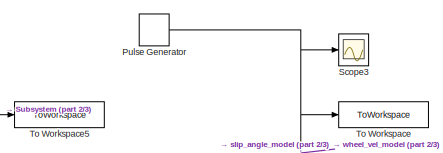
[diagram: root canvas - part 1/3, top right region]
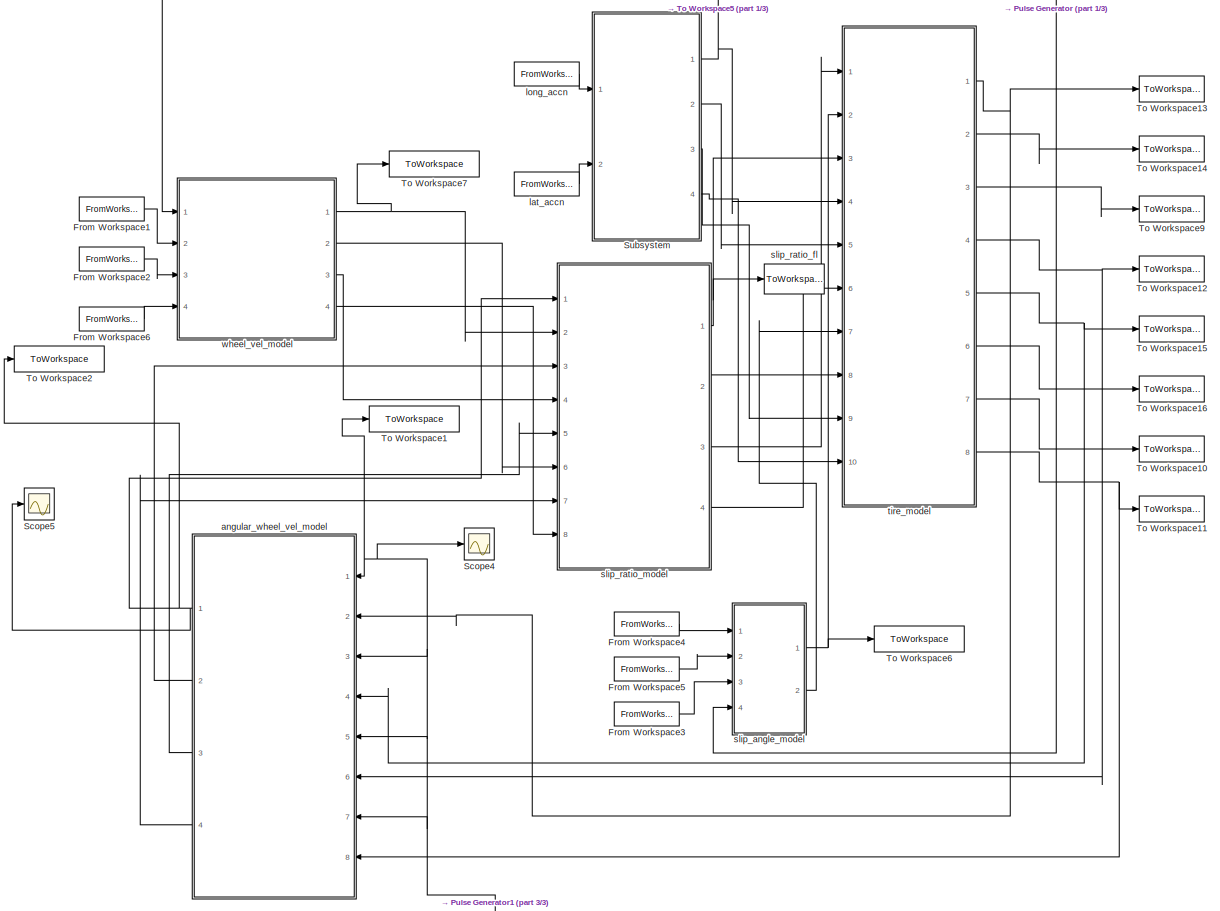
[diagram: root canvas - part 2/3, full width, middle band]
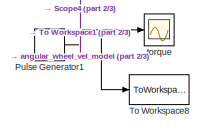
[diagram: root canvas - part 3/3, bottom center region]
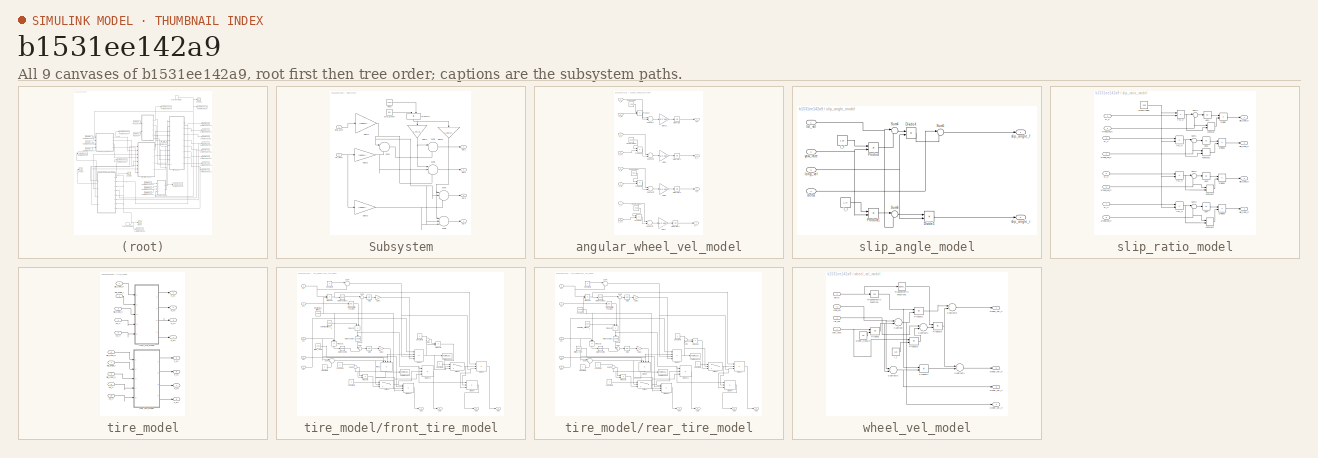
[diagram: thumbnail index - all 9 canvases of the model, root first then tree order]
MODEL slx_b1531ee142a9
KIND model
CONFIG AbsTol = auto
CONFIG FixedStep = auto
CONFIG MaxStep = auto
CONFIG MinStep = auto
CONFIG RelTol = 1e-3
CONFIG SampleTimeConstraint = Unconstrained
CONFIG Solver = ode3
CONFIG SolverMode = Auto
CONFIG SolverName = ode3
CONFIG StartTime = 0.0
CONFIG StopTime = 0
BLOCK [Scope]            torque
  Floating = off
  LimitDataPoints = off
  NumInputPorts = 1
  Ports = [1]
  SaveName = ScopeData10
  ZoomMode = xonly
BLOCK [FromWorkspace] From Workspace1
  SampleTime = 1
  VariableName = long_vel
  ZeroCross = on
BLOCK [FromWorkspace] From Workspace2
  SampleTime = 1
  VariableName = lat_vel
  ZeroCross = on
BLOCK [FromWorkspace] From Workspace3
  SampleTime = 1
  VariableName = long_vel
  ZeroCross = on
BLOCK [FromWorkspace] From Workspace4
  SampleTime = 1
  VariableName = lat_vel
  ZeroCross = on
BLOCK [FromWorkspace] From Workspace5
  SampleTime = 1
  VariableName = yaw_rate
  ZeroCross = on
BLOCK [FromWorkspace] From Workspace6
  SampleTime = 1
  VariableName = yaw_rate
  ZeroCross = on
BLOCK [DiscretePulseGenerator] Pulse Generator
  Amplitude = 0
  Period = 8
  PhaseDelay = 3
  Ports = [0, 1]
  PulseType = Time based
  PulseWidth = 5
BLOCK [DiscretePulseGenerator] Pulse Generator1
  Amplitude = 50
  Period = 8
  PhaseDelay = 3
  Ports = [0, 1]
  PulseType = Time based
  PulseWidth = 5
BLOCK [Scope] Scope3
  Floating = off
  NumInputPorts = 1
  Ports = [1]
  SaveName = ScopeData3
BLOCK [Scope] Scope4
  Floating = off
  NumInputPorts = 1
  Ports = [1]
  SaveName = ScopeData4
BLOCK [Scope] Scope5
  Floating = off
  NumInputPorts = 1
  Ports = [1]
  SaveName = ScopeData5
BLOCK [SubSystem] Subsystem
  Ports = [2, 4]
  RequestExecContextInheritance = off
BLOCK [Gain] Subsystem/Gain12
  Gain = (1500*0.7)/(2*2.95)
  OutDataTypeStr = Inherit: Inherit via internal rule
  ParamDataTypeStr = Inherit: Inherit via internal rule
  SaturateOnIntegerOverflow = off
BLOCK [Gain] Subsystem/Gain13
  Gain = (1500*1.77*0.7)/(2.95*1.8)
  OutDataTypeStr = Inherit: Inherit via internal rule
  ParamDataTypeStr = Inherit: Inherit via internal rule
  SaturateOnIntegerOverflow = off
BLOCK [Gain] Subsystem/Gain14
  Gain = 1.77/(2*2.95)
  OutDataTypeStr = Inherit: Inherit via internal rule
  ParamDataTypeStr = Inherit: Inherit via internal rule
  SaturateOnIntegerOverflow = off
BLOCK [Gain] Subsystem/Gain15
  Gain = 1.18/(2*2.95)
  OutDataTypeStr = Inherit: Inherit via internal rule
  ParamDataTypeStr = Inherit: Inherit via internal rule
  SaturateOnIntegerOverflow = off
BLOCK [Gain] Subsystem/Gain16
  Gain = (1500*1.18*0.7)/(2.95*1.8)
  OutDataTypeStr = Inherit: Inherit via internal rule
  ParamDataTypeStr = Inherit: Inherit via internal rule
  SaturateOnIntegerOverflow = off
BLOCK [Outport] Subsystem/Out1
  IconDisplay = Port number
BLOCK [Outport] Subsystem/Out2
  IconDisplay = Port number
  Port = 2
BLOCK [Outport] Subsystem/Out3
  IconDisplay = Port number
  Port = 3
BLOCK [Outport] Subsystem/Out4
  IconDisplay = Port number
  Port = 4
BLOCK [Product] Subsystem/Product8
  InputSameDT = off
  OutDataTypeStr = Inherit: Inherit via internal rule
  Ports = [2, 1]
  RndMeth = Floor
  SaturateOnIntegerOverflow = off
BLOCK [Sum] Subsystem/Sum4
  IconShape = round
  InputSameDT = off
  Inputs = |++
  OutDataTypeStr = Inherit: Inherit via internal rule
  Ports = [2, 1]
  SaturateOnIntegerOverflow = off
BLOCK [Sum] Subsystem/Sum5
  IconShape = round
  InputSameDT = off
  Inputs = |+-
  OutDataTypeStr = Inherit: Inherit via internal rule
  Ports = [2, 1]
  SaturateOnIntegerOverflow = off
BLOCK [Sum] Subsystem/Sum6
  IconShape = round
  InputSameDT = off
  Inputs = |++-
  OutDataTypeStr = Inherit: Inherit via internal rule
  Ports = [3, 1]
  SaturateOnIntegerOverflow = off
BLOCK [Sum] Subsystem/Sum7
  IconShape = round
  InputSameDT = off
  Inputs = |++-
  OutDataTypeStr = Inherit: Inherit via internal rule
  Ports = [3, 1]
  SaturateOnIntegerOverflow = off
BLOCK [Sum] Subsystem/Sum8
  IconShape = round
  InputSameDT = off
  Inputs = |+++
  OutDataTypeStr = Inherit: Inherit via internal rule
  Ports = [3, 1]
  SaturateOnIntegerOverflow = off
BLOCK [Constant] Subsystem/accn_gravity 
  Value = 9.81
BLOCK [Inport] Subsystem/lat_accn
  IconDisplay = Port number
  Port = 2
BLOCK [Inport] Subsystem/long_accn
  IconDisplay = Port number
BLOCK [Constant] Subsystem/mass
  Value = 1500
BLOCK [ToWorkspace] To Workspace
  FixptAsFi = on
  MaxDataPoints = inf
  Ports = [1]
  SampleTime = 1
  Save2DSignal = 3-D array (concatenate along third dimension)
  SaveFormat = Timeseries
  VariableName = steering_angle
BLOCK [ToWorkspace] To Workspace1
  FixptAsFi = on
  MaxDataPoints = inf
  Ports = [1]
  SampleTime = 1
  Save2DSignal = 3-D array (concatenate along third dimension)
  SaveFormat = Timeseries
  VariableName = T_fl
BLOCK [ToWorkspace] To Workspace10
  FixptAsFi = on
  MaxDataPoints = inf
  Ports = [1]
  SampleTime = 1
  Save2DSignal = 3-D array (concatenate along third dimension)
  SaveFormat = Timeseries
  VariableName = F_yrr
BLOCK [ToWorkspace] To Workspace11
  FixptAsFi = on
  MaxDataPoints = inf
  Ports = [1]
  SampleTime = 1
  Save2DSignal = 3-D array (concatenate along third dimension)
  SaveFormat = Timeseries
  VariableName = F_xrr
BLOCK [ToWorkspace] To Workspace12
  FixptAsFi = on
  MaxDataPoints = inf
  Ports = [1]
  SampleTime = 1
  Save2DSignal = 3-D array (concatenate along third dimension)
  SaveFormat = Timeseries
  VariableName = F_xfr
BLOCK [ToWorkspace] To Workspace13
  FixptAsFi = on
  MaxDataPoints = inf
  Ports = [1]
  SampleTime = 1
  Save2DSignal = 3-D array (concatenate along third dimension)
  SaveFormat = Timeseries
  VariableName = F_xfl
BLOCK [ToWorkspace] To Workspace14
  FixptAsFi = on
  MaxDataPoints = inf
  Ports = [1]
  SampleTime = 1
  Save2DSignal = 3-D array (concatenate along third dimension)
  SaveFormat = Timeseries
  VariableName = F_yfl
BLOCK [ToWorkspace] To Workspace15
  FixptAsFi = on
  MaxDataPoints = inf
  Ports = [1]
  SampleTime = 1
  Save2DSignal = 3-D array (concatenate along third dimension)
  SaveFormat = Timeseries
  VariableName = F_xrl
BLOCK [ToWorkspace] To Workspace16
  FixptAsFi = on
  MaxDataPoints = inf
  Ports = [1]
  SampleTime = 1
  Save2DSignal = 3-D array (concatenate along third dimension)
  SaveFormat = Timeseries
  VariableName = F_yrl
BLOCK [ToWorkspace] To Workspace2
  FixptAsFi = on
  MaxDataPoints = inf
  Ports = [1]
  SampleTime = 1
  Save2DSignal = 3-D array (concatenate along third dimension)
  SaveFormat = Timeseries
  VariableName = w_fl
BLOCK [ToWorkspace] To Workspace5
  FixptAsFi = on
  MaxDataPoints = inf
  Ports = [1]
  SampleTime = 1
  Save2DSignal = 3-D array (concatenate along third dimension)
  SaveFormat = Timeseries
  VariableName = normal_force_fl
BLOCK [ToWorkspace] To Workspace6
  FixptAsFi = on
  MaxDataPoints = inf
  Ports = [1]
  SampleTime = 1
  Save2DSignal = 3-D array (concatenate along third dimension)
  SaveFormat = Timeseries
  VariableName = slip_angle_f
BLOCK [ToWorkspace] To Workspace7
  FixptAsFi = on
  MaxDataPoints = inf
  Ports = [1]
  SampleTime = 1
  Save2DSignal = 3-D array (concatenate along third dimension)
  SaveFormat = Timeseries
  VariableName = wheel_vel_fl
BLOCK [ToWorkspace] To Workspace8
  FixptAsFi = on
  MaxDataPoints = inf
  Ports = [1]
  SampleTime = -1
  Save2DSignal = 3-D array (concatenate along third dimension)
  SaveFormat = Timeseries
  VariableName = torque
BLOCK [ToWorkspace] To Workspace9
  FixptAsFi = on
  MaxDataPoints = inf
  Ports = [1]
  SampleTime = 1
  Save2DSignal = 3-D array (concatenate along third dimension)
  SaveFormat = Timeseries
  VariableName = F_yfr
BLOCK [SubSystem] angular_wheel_vel_model
  Ports = [8, 4]
  RequestExecContextInheritance = off
BLOCK [Inport] angular_wheel_vel_model/F_xfl
  IconDisplay = Port number
  Port = 2
BLOCK [Inport] angular_wheel_vel_model/F_xfr
  IconDisplay = Port number
  Port = 6
BLOCK [Inport] angular_wheel_vel_model/F_xrl
  IconDisplay = Port number
  Port = 4
BLOCK [Inport] angular_wheel_vel_model/F_xrr
  IconDisplay = Port number
  Port = 8
BLOCK [Gain] angular_wheel_vel_model/Gain1
  Gain = 1/2.166
  OutDataTypeStr = Inherit: Inherit via internal rule
  ParamDataTypeStr = Inherit: Inherit via internal rule
  SaturateOnIntegerOverflow = off
BLOCK [Gain] angular_wheel_vel_model/Gain2
  Gain = 1/2.166
  OutDataTypeStr = Inherit: Inherit via internal rule
  ParamDataTypeStr = Inherit: Inherit via internal rule
  SaturateOnIntegerOverflow = off
BLOCK [Gain] angular_wheel_vel_model/Gain23
  Gain = 1/2.166
  OutDataTypeStr = Inherit: Inherit via internal rule
  ParamDataTypeStr = Inherit: Inherit via internal rule
  SaturateOnIntegerOverflow = off
BLOCK [Gain] angular_wheel_vel_model/Gain3
  Gain = 1/2.166
  OutDataTypeStr = Inherit: Inherit via internal rule
  ParamDataTypeStr = Inherit: Inherit via internal rule
  SaturateOnIntegerOverflow = off
BLOCK [Integrator] angular_wheel_vel_model/Integrator
  InitialCondition = 58.5
  Ports = [1, 1]
BLOCK [Integrator] angular_wheel_vel_model/Integrator1
  InitialCondition = 58.5
  Ports = [1, 1]
BLOCK [Integrator] angular_wheel_vel_model/Integrator2
  InitialCondition = 58.5
  Ports = [1, 1]
BLOCK [Integrator] angular_wheel_vel_model/Integrator3
  InitialCondition = 58.5
  Ports = [1, 1]
BLOCK [Product] angular_wheel_vel_model/Product
  InputSameDT = off
  OutDataTypeStr = Inherit: Inherit via internal rule
  Ports = [2, 1]
  RndMeth = Floor
  SaturateOnIntegerOverflow = off
BLOCK [Product] angular_wheel_vel_model/Product1
  InputSameDT = off
  OutDataTypeStr = Inherit: Inherit via internal rule
  Ports = [2, 1]
  RndMeth = Floor
  SaturateOnIntegerOverflow = off
BLOCK [Product] angular_wheel_vel_model/Product2
  InputSameDT = off
  OutDataTypeStr = Inherit: Inherit via internal rule
  Ports = [2, 1]
  RndMeth = Floor
  SaturateOnIntegerOverflow = off
BLOCK [Product] angular_wheel_vel_model/Product3
  InputSameDT = off
  OutDataTypeStr = Inherit: Inherit via internal rule
  Ports = [2, 1]
  RndMeth = Floor
  SaturateOnIntegerOverflow = off
BLOCK [Sum] angular_wheel_vel_model/Subtract
  InputSameDT = off
  Inputs = +-
  OutDataTypeStr = Inherit: Inherit via internal rule
  Ports = [2, 1]
  SaturateOnIntegerOverflow = off
BLOCK [Sum] angular_wheel_vel_model/Subtract1
  InputSameDT = off
  Inputs = +-
  OutDataTypeStr = Inherit: Inherit via internal rule
  Ports = [2, 1]
  SaturateOnIntegerOverflow = off
BLOCK [Sum] angular_wheel_vel_model/Subtract2
  InputSameDT = off
  Inputs = +-
  OutDataTypeStr = Inherit: Inherit via internal rule
  Ports = [2, 1]
  SaturateOnIntegerOverflow = off
BLOCK [Sum] angular_wheel_vel_model/Subtract3
  InputSameDT = off
  Inputs = +-
  OutDataTypeStr = Inherit: Inherit via internal rule
  Ports = [2, 1]
  SaturateOnIntegerOverflow = off
BLOCK [Inport] angular_wheel_vel_model/T_fl
  IconDisplay = Port number
BLOCK [Inport] angular_wheel_vel_model/T_fr
  IconDisplay = Port number
  Port = 5
BLOCK [Inport] angular_wheel_vel_model/T_rl
  IconDisplay = Port number
  Port = 3
BLOCK [Inport] angular_wheel_vel_model/T_rr
  IconDisplay = Port number
  Port = 7
BLOCK [Outport] angular_wheel_vel_model/w_fl
  IconDisplay = Port number
BLOCK [Outport] angular_wheel_vel_model/w_fr
  IconDisplay = Port number
  Port = 3
BLOCK [Outport] angular_wheel_vel_model/w_rl
  IconDisplay = Port number
  Port = 2
BLOCK [Outport] angular_wheel_vel_model/w_rr
  IconDisplay = Port number
  Port = 4
BLOCK [Constant] angular_wheel_vel_model/wheel radius 
  Value = 0.38
BLOCK [Constant] angular_wheel_vel_model/wheel radius 1
  Value = 0.38
BLOCK [Constant] angular_wheel_vel_model/wheel radius 2
  Value = 0.38
BLOCK [Constant] angular_wheel_vel_model/wheel radius 3
  Value = 0.38
BLOCK [FromWorkspace] lat_accn
  SampleTime = 0
  VariableName = lat_accn
  ZeroCross = on
BLOCK [FromWorkspace] long_accn
  SampleTime = 0
  VariableName = long_accn
  ZeroCross = on
BLOCK [SubSystem] slip_angle_model
  Ports = [4, 2]
  RequestExecContextInheritance = off
BLOCK [Product] slip_angle_model/Divide4
  InputSameDT = off
  Inputs = */
  OutDataTypeStr = Inherit: Inherit via internal rule
  Ports = [2, 1]
  RndMeth = Floor
  SaturateOnIntegerOverflow = off
BLOCK [Product] slip_angle_model/Divide5
  InputSameDT = off
  Inputs = */
  OutDataTypeStr = Inherit: Inherit via internal rule
  Ports = [2, 1]
  RndMeth = Floor
  SaturateOnIntegerOverflow = off
BLOCK [Product] slip_angle_model/Product
  InputSameDT = off
  OutDataTypeStr = Inherit: Inherit via internal rule
  Ports = [2, 1]
  RndMeth = Floor
  SaturateOnIntegerOverflow = off
BLOCK [Product] slip_angle_model/Product1
  InputSameDT = off
  OutDataTypeStr = Inherit: Inherit via internal rule
  Ports = [2, 1]
  RndMeth = Floor
  SaturateOnIntegerOverflow = off
BLOCK [Sum] slip_angle_model/Sum4
  IconShape = round
  InputSameDT = off
  Inputs = |++
  OutDataTypeStr = Inherit: Inherit via internal rule
  Ports = [2, 1]
  SaturateOnIntegerOverflow = off
BLOCK [Sum] slip_angle_model/Sum5
  IconShape = round
  InputSameDT = off
  Inputs = |+-
  OutDataTypeStr = Inherit: Inherit via internal rule
  Ports = [2, 1]
  SaturateOnIntegerOverflow = off
BLOCK [Sum] slip_angle_model/Sum6
  IconShape = round
  InputSameDT = off
  Inputs = |+-
  OutDataTypeStr = Inherit: Inherit via internal rule
  Ports = [2, 1]
  SaturateOnIntegerOverflow = off
BLOCK [Inport] slip_angle_model/delta
  IconDisplay = Port number
  Port = 4
BLOCK [Constant] slip_angle_model/l_f
  Value = 1.18
BLOCK [Constant] slip_angle_model/l_r
  Value = 1.77
BLOCK [Inport] slip_angle_model/lat_vel
  IconDisplay = Port number
BLOCK [Inport] slip_angle_model/long_vel
  IconDisplay = Port number
  Port = 3
BLOCK [Outport] slip_angle_model/slip_angle_f
  IconDisplay = Port number
BLOCK [Outport] slip_angle_model/slip_angle_r
  IconDisplay = Port number
  Port = 2
BLOCK [Inport] slip_angle_model/yaw_rate
  IconDisplay = Port number
  Port = 2
BLOCK [ToWorkspace] slip_ratio_fl
  FixptAsFi = on
  MaxDataPoints = inf
  Ports = [1]
  SampleTime = 1
  Save2DSignal = 3-D array (concatenate along third dimension)
  SaveFormat = Timeseries
  VariableName = slip_ratio_fl
BLOCK [SubSystem] slip_ratio_model
  Ports = [8, 4]
  RequestExecContextInheritance = off
BLOCK [Abs] slip_ratio_model/Abs1
  SaturateOnIntegerOverflow = off
BLOCK [Abs] slip_ratio_model/Abs2
  SaturateOnIntegerOverflow = off
BLOCK [Abs] slip_ratio_model/Abs3
  SaturateOnIntegerOverflow = off
BLOCK [Abs] slip_ratio_model/Abs4
  SaturateOnIntegerOverflow = off
BLOCK [Product] slip_ratio_model/Divide
  InputSameDT = off
  Inputs = */
  OutDataTypeStr = Inherit: Inherit via internal rule
  Ports = [2, 1]
  RndMeth = Floor
  SaturateOnIntegerOverflow = off
BLOCK [Product] slip_ratio_model/Divide1
  InputSameDT = off
  Inputs = */
  OutDataTypeStr = Inherit: Inherit via internal rule
  Ports = [2, 1]
  RndMeth = Floor
  SaturateOnIntegerOverflow = off
BLOCK [Product] slip_ratio_model/Divide2
  InputSameDT = off
  Inputs = */
  OutDataTypeStr = Inherit: Inherit via internal rule
  Ports = [2, 1]
  RndMeth = Floor
  SaturateOnIntegerOverflow = off
BLOCK [Product] slip_ratio_model/Divide3
  InputSameDT = off
  Inputs = */
  OutDataTypeStr = Inherit: Inherit via internal rule
  Ports = [2, 1]
  RndMeth = Floor
  SaturateOnIntegerOverflow = off
BLOCK [MinMax] slip_ratio_model/MinMax
  Function = max
  InputSameDT = off
  Inputs = 2
  Ports = [2, 1]
  SaturateOnIntegerOverflow = off
BLOCK [MinMax] slip_ratio_model/MinMax1
  Function = max
  InputSameDT = off
  Inputs = 2
  Ports = [2, 1]
  SaturateOnIntegerOverflow = off
BLOCK [MinMax] slip_ratio_model/MinMax2
  Function = max
  InputSameDT = off
  Inputs = 2
  Ports = [2, 1]
  SaturateOnIntegerOverflow = off
BLOCK [MinMax] slip_ratio_model/MinMax3
  Function = max
  InputSameDT = off
  Inputs = 2
  Ports = [2, 1]
  SaturateOnIntegerOverflow = off
BLOCK [Sum] slip_ratio_model/Sum1
  IconShape = round
  InputSameDT = off
  Inputs = |+-
  OutDataTypeStr = Inherit: Inherit via internal rule
  Ports = [2, 1]
  SaturateOnIntegerOverflow = off
BLOCK [Sum] slip_ratio_model/Sum2
  IconShape = round
  InputSameDT = off
  Inputs = |+-
  OutDataTypeStr = Inherit: Inherit via internal rule
  Ports = [2, 1]
  SaturateOnIntegerOverflow = off
BLOCK [Sum] slip_ratio_model/Sum3
  IconShape = round
  InputSameDT = off
  Inputs = |+-
  OutDataTypeStr = Inherit: Inherit via internal rule
  Ports = [2, 1]
  SaturateOnIntegerOverflow = off
BLOCK [Sum] slip_ratio_model/Sum4
  IconShape = round
  InputSameDT = off
  Inputs = |+-
  OutDataTypeStr = Inherit: Inherit via internal rule
  Ports = [2, 1]
  SaturateOnIntegerOverflow = off
BLOCK [Product] slip_ratio_model/r*w_fl
  InputSameDT = off
  Inputs = **
  OutDataTypeStr = Inherit: Inherit via internal rule
  Ports = [2, 1]
  RndMeth = Floor
  SaturateOnIntegerOverflow = off
BLOCK [Product] slip_ratio_model/r*w_fr
  InputSameDT = off
  Inputs = **
  OutDataTypeStr = Inherit: Inherit via internal rule
  Ports = [2, 1]
  RndMeth = Floor
  SaturateOnIntegerOverflow = off
BLOCK [Product] slip_ratio_model/r*w_rl
  InputSameDT = off
  Inputs = **
  OutDataTypeStr = Inherit: Inherit via internal rule
  Ports = [2, 1]
  RndMeth = Floor
  SaturateOnIntegerOverflow = off
BLOCK [Product] slip_ratio_model/r*w_rr
  InputSameDT = off
  Inputs = **
  OutDataTypeStr = Inherit: Inherit via internal rule
  Ports = [2, 1]
  RndMeth = Floor
  SaturateOnIntegerOverflow = off
BLOCK [Outport] slip_ratio_model/slip_ratio_fl
  IconDisplay = Port number
BLOCK [Outport] slip_ratio_model/slip_ratio_fr
  IconDisplay = Port number
  Port = 3
BLOCK [Outport] slip_ratio_model/slip_ratio_rl
  IconDisplay = Port number
  Port = 2
BLOCK [Outport] slip_ratio_model/slip_ratio_rr
  IconDisplay = Port number
  Port = 4
BLOCK [Inport] slip_ratio_model/w_fl
  IconDisplay = Port number
BLOCK [Inport] slip_ratio_model/w_fr
  IconDisplay = Port number
  Port = 5
BLOCK [Inport] slip_ratio_model/w_rl
  IconDisplay = Port number
  Port = 3
BLOCK [Inport] slip_ratio_model/w_rr
  IconDisplay = Port number
  Port = 7
BLOCK [Constant] slip_ratio_model/wheel radius
  Value = 0.38
BLOCK [Inport] slip_ratio_model/wheel_vel_fl
  IconDisplay = Port number
  Port = 2
BLOCK [Inport] slip_ratio_model/wheel_vel_fr
  IconDisplay = Port number
  Port = 6
BLOCK [Inport] slip_ratio_model/wheel_vel_rl
  IconDisplay = Port number
  Port = 4
BLOCK [Inport] slip_ratio_model/wheel_vel_rr
  IconDisplay = Port number
  Port = 8
BLOCK [SubSystem] tire_model
  Ports = [10, 8]
  RequestExecContextInheritance = off
BLOCK [Outport] tire_model/F_xfl
  IconDisplay = Port number
BLOCK [Outport] tire_model/F_xfr
  IconDisplay = Port number
  Port = 4
BLOCK [Outport] tire_model/F_xrl
  IconDisplay = Port number
  Port = 5
BLOCK [Outport] tire_model/F_xrr
  IconDisplay = Port number
  Port = 8
BLOCK [Outport] tire_model/F_yfl
  IconDisplay = Port number
  Port = 2
BLOCK [Outport] tire_model/F_yfr
  IconDisplay = Port number
  Port = 3
BLOCK [Outport] tire_model/F_yrl
  IconDisplay = Port number
  Port = 6
BLOCK [Outport] tire_model/F_yrr
  IconDisplay = Port number
  Port = 7
BLOCK [Inport] tire_model/Fz_fl
  IconDisplay = Port number
  Port = 4
BLOCK [Inport] tire_model/Fz_fr
  IconDisplay = Port number
  Port = 5
BLOCK [Inport] tire_model/Fz_rl
  IconDisplay = Port number
  Port = 9
BLOCK [Inport] tire_model/Fz_rr
  IconDisplay = Port number
  Port = 10
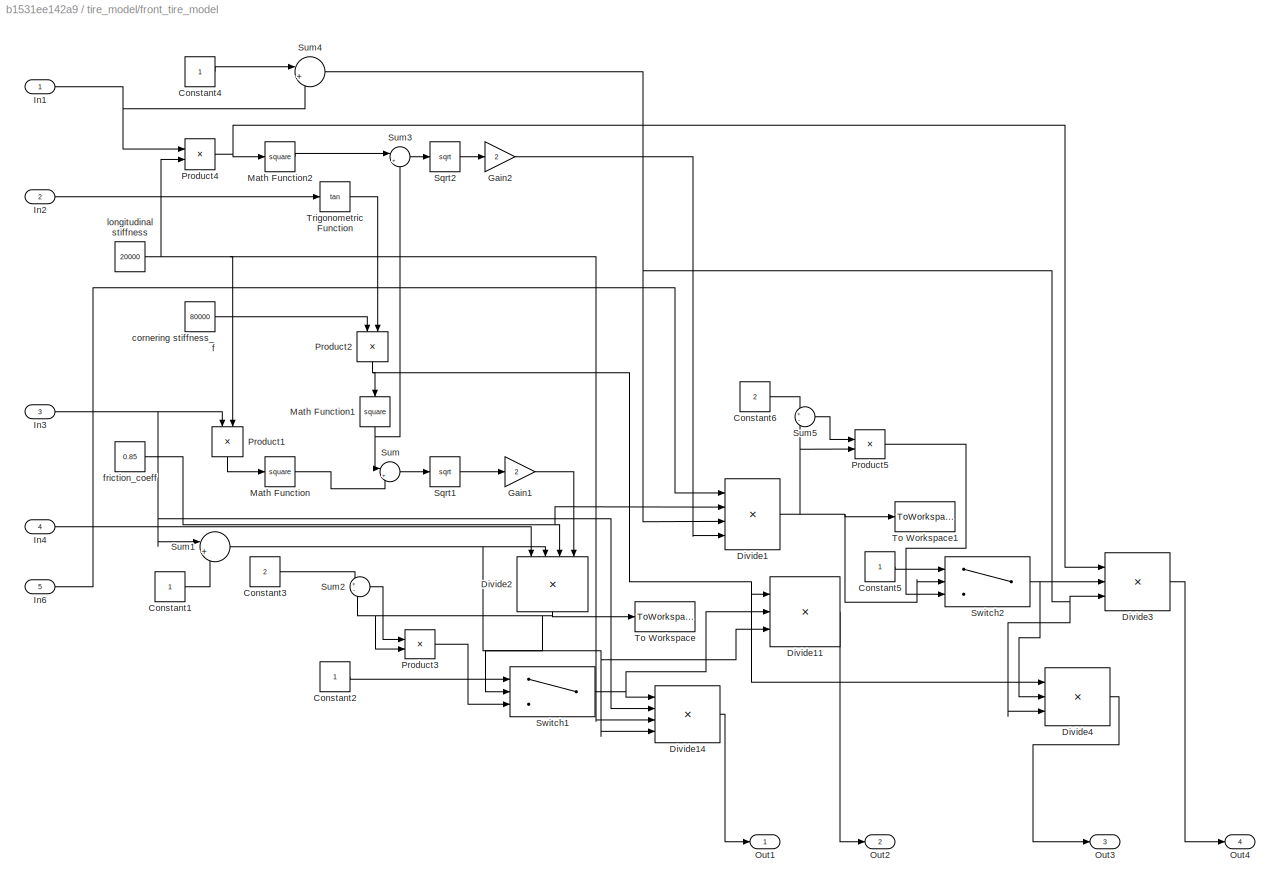
BLOCK [SubSystem] tire_model/front_tire_model
  Ports = [5, 4]
  RequestExecContextInheritance = off
BLOCK [Constant] tire_model/front_tire_model/Constant1
BLOCK [Constant] tire_model/front_tire_model/Constant2
BLOCK [Constant] tire_model/front_tire_model/Constant3
  Value = 2
BLOCK [Constant] tire_model/front_tire_model/Constant4
BLOCK [Constant] tire_model/front_tire_model/Constant5
BLOCK [Constant] tire_model/front_tire_model/Constant6
  Value = 2
BLOCK [Product] tire_model/front_tire_model/Divide1
  InputSameDT = off
  Inputs = ***/
  OutDataTypeStr = Inherit: Inherit via internal rule
  Ports = [4, 1]
  RndMeth = Floor
  SaturateOnIntegerOverflow = off
BLOCK [Product] tire_model/front_tire_model/Divide11
  InputSameDT = off
  Inputs = **/
  OutDataTypeStr = Inherit: Inherit via internal rule
  Ports = [3, 1]
  RndMeth = Floor
  SaturateOnIntegerOverflow = off
BLOCK [Product] tire_model/front_tire_model/Divide14
  InputSameDT = off
  Inputs = ***/
  OutDataTypeStr = Inherit: Inherit via internal rule
  Ports = [4, 1]
  RndMeth = Floor
  SaturateOnIntegerOverflow = off
BLOCK [Product] tire_model/front_tire_model/Divide2
  InputSameDT = off
  Inputs = ***/
  OutDataTypeStr = Inherit: Inherit via internal rule
  Ports = [4, 1]
  RndMeth = Floor
  SaturateOnIntegerOverflow = off
BLOCK [Product] tire_model/front_tire_model/Divide3
  InputSameDT = off
  Inputs = **/
  OutDataTypeStr = Inherit: Inherit via internal rule
  Ports = [3, 1]
  RndMeth = Floor
  SaturateOnIntegerOverflow = off
BLOCK [Product] tire_model/front_tire_model/Divide4
  InputSameDT = off
  Inputs = **/
  OutDataTypeStr = Inherit: Inherit via internal rule
  Ports = [3, 1]
  RndMeth = Floor
  SaturateOnIntegerOverflow = off
BLOCK [Gain] tire_model/front_tire_model/Gain1
  Gain = 2
  OutDataTypeStr = Inherit: Inherit via internal rule
  ParamDataTypeStr = Inherit: Inherit via internal rule
  SaturateOnIntegerOverflow = off
BLOCK [Gain] tire_model/front_tire_model/Gain2
  Gain = 2
  OutDataTypeStr = Inherit: Inherit via internal rule
  ParamDataTypeStr = Inherit: Inherit via internal rule
  SaturateOnIntegerOverflow = off
BLOCK [Inport] tire_model/front_tire_model/In1
  IconDisplay = Port number
BLOCK [Inport] tire_model/front_tire_model/In2
  IconDisplay = Port number
  Port = 2
BLOCK [Inport] tire_model/front_tire_model/In3
  IconDisplay = Port number
  Port = 3
BLOCK [Inport] tire_model/front_tire_model/In4
  IconDisplay = Port number
  Port = 4
BLOCK [Inport] tire_model/front_tire_model/In6
  IconDisplay = Port number
  Port = 5
BLOCK [Math] tire_model/front_tire_model/Math Function
  Operator = square
  Ports = [1, 1]
BLOCK [Math] tire_model/front_tire_model/Math Function1
  Operator = square
  Ports = [1, 1]
BLOCK [Math] tire_model/front_tire_model/Math Function2
  Operator = square
  Ports = [1, 1]
BLOCK [Outport] tire_model/front_tire_model/Out1
  IconDisplay = Port number
BLOCK [Outport] tire_model/front_tire_model/Out2
  IconDisplay = Port number
  Port = 2
BLOCK [Outport] tire_model/front_tire_model/Out3
  IconDisplay = Port number
  Port = 3
BLOCK [Outport] tire_model/front_tire_model/Out4
  IconDisplay = Port number
  Port = 4
BLOCK [Product] tire_model/front_tire_model/Product1
  InputSameDT = off
  OutDataTypeStr = Inherit: Inherit via internal rule
  Ports = [2, 1]
  RndMeth = Floor
  SaturateOnIntegerOverflow = off
BLOCK [Product] tire_model/front_tire_model/Product2
  InputSameDT = off
  OutDataTypeStr = Inherit: Inherit via internal rule
  Ports = [2, 1]
  RndMeth = Floor
  SaturateOnIntegerOverflow = off
BLOCK [Product] tire_model/front_tire_model/Product3
  InputSameDT = off
  OutDataTypeStr = Inherit: Inherit via internal rule
  Ports = [2, 1]
  RndMeth = Floor
  SaturateOnIntegerOverflow = off
BLOCK [Product] tire_model/front_tire_model/Product4
  InputSameDT = off
  OutDataTypeStr = Inherit: Inherit via internal rule
  Ports = [2, 1]
  RndMeth = Floor
  SaturateOnIntegerOverflow = off
BLOCK [Product] tire_model/front_tire_model/Product5
  InputSameDT = off
  OutDataTypeStr = Inherit: Inherit via internal rule
  Ports = [2, 1]
  RndMeth = Floor
  SaturateOnIntegerOverflow = off
BLOCK [Sqrt] tire_model/front_tire_model/Sqrt1
BLOCK [Sqrt] tire_model/front_tire_model/Sqrt2
BLOCK [Sum] tire_model/front_tire_model/Sum
  IconShape = round
  InputSameDT = off
  Inputs = |++
  OutDataTypeStr = Inherit: Inherit via internal rule
  Ports = [2, 1]
  SaturateOnIntegerOverflow = off
BLOCK [Sum] tire_model/front_tire_model/Sum1
  IconShape = round
  InputSameDT = off
  Inputs = |++
  OutDataTypeStr = Inherit: Inherit via internal rule
  Ports = [2, 1]
  SaturateOnIntegerOverflow = off
BLOCK [Sum] tire_model/front_tire_model/Sum2
  IconShape = round
  InputSameDT = off
  Inputs = +-
  OutDataTypeStr = Inherit: Inherit via internal rule
  Ports = [2, 1]
  SaturateOnIntegerOverflow = off
BLOCK [Sum] tire_model/front_tire_model/Sum3
  IconShape = round
  InputSameDT = off
  Inputs = |++
  OutDataTypeStr = Inherit: Inherit via internal rule
  Ports = [2, 1]
  SaturateOnIntegerOverflow = off
BLOCK [Sum] tire_model/front_tire_model/Sum4
  IconShape = round
  InputSameDT = off
  Inputs = |++
  OutDataTypeStr = Inherit: Inherit via internal rule
  Ports = [2, 1]
  SaturateOnIntegerOverflow = off
BLOCK [Sum] tire_model/front_tire_model/Sum5
  IconShape = round
  InputSameDT = off
  Inputs = +-
  OutDataTypeStr = Inherit: Inherit via internal rule
  Ports = [2, 1]
  SaturateOnIntegerOverflow = off
BLOCK [Switch] tire_model/front_tire_model/Switch1
  InputSameDT = off
  SaturateOnIntegerOverflow = off
  Threshold = 1
BLOCK [Switch] tire_model/front_tire_model/Switch2
  InputSameDT = off
  SaturateOnIntegerOverflow = off
  Threshold = 1
BLOCK [ToWorkspace] tire_model/front_tire_model/To Workspace
  FixptAsFi = on
  MaxDataPoints = inf
  Ports = [1]
  SampleTime = -1
  Save2DSignal = 3-D array (concatenate along third dimension)
  SaveFormat = Timeseries
  VariableName = lambda_fl
BLOCK [ToWorkspace] tire_model/front_tire_model/To Workspace1
  FixptAsFi = on
  MaxDataPoints = inf
  Ports = [1]
  SampleTime = -1
  Save2DSignal = 3-D array (concatenate along third dimension)
  SaveFormat = Timeseries
  VariableName = lambda_fr
BLOCK [Trigonometry] tire_model/front_tire_model/Trigonometric Function
  Operator = tan
  Ports = [1, 1]
BLOCK [Constant] tire_model/front_tire_model/cornering stiffness_f
  Value = 80000
BLOCK [Constant] tire_model/front_tire_model/friction_coeff
  Value = 0.85
BLOCK [Constant] tire_model/front_tire_model/longitudinal stiffness
  Value = 20000
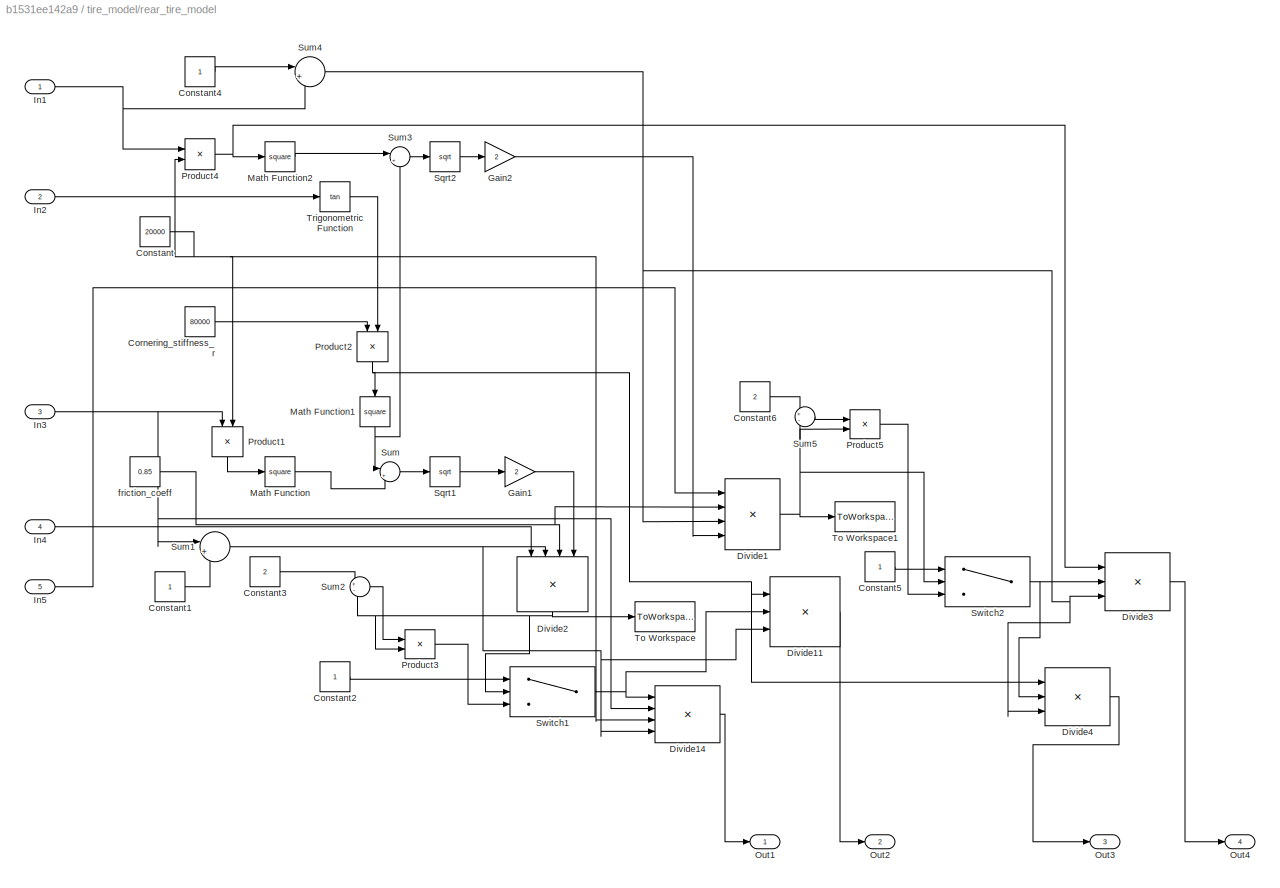
BLOCK [SubSystem] tire_model/rear_tire_model
  Ports = [5, 4]
  RequestExecContextInheritance = off
BLOCK [Constant] tire_model/rear_tire_model/Constant
  Value = 20000
BLOCK [Constant] tire_model/rear_tire_model/Constant1
BLOCK [Constant] tire_model/rear_tire_model/Constant2
BLOCK [Constant] tire_model/rear_tire_model/Constant3
  Value = 2
BLOCK [Constant] tire_model/rear_tire_model/Constant4
BLOCK [Constant] tire_model/rear_tire_model/Constant5
BLOCK [Constant] tire_model/rear_tire_model/Constant6
  Value = 2
BLOCK [Constant] tire_model/rear_tire_model/Cornering_stiffness_r
  Value = 80000
BLOCK [Product] tire_model/rear_tire_model/Divide1
  InputSameDT = off
  Inputs = ***/
  OutDataTypeStr = Inherit: Inherit via internal rule
  Ports = [4, 1]
  RndMeth = Floor
  SaturateOnIntegerOverflow = off
BLOCK [Product] tire_model/rear_tire_model/Divide11
  InputSameDT = off
  Inputs = **/
  OutDataTypeStr = Inherit: Inherit via internal rule
  Ports = [3, 1]
  RndMeth = Floor
  SaturateOnIntegerOverflow = off
BLOCK [Product] tire_model/rear_tire_model/Divide14
  InputSameDT = off
  Inputs = ***/
  OutDataTypeStr = Inherit: Inherit via internal rule
  Ports = [4, 1]
  RndMeth = Floor
  SaturateOnIntegerOverflow = off
BLOCK [Product] tire_model/rear_tire_model/Divide2
  InputSameDT = off
  Inputs = ***/
  OutDataTypeStr = Inherit: Inherit via internal rule
  Ports = [4, 1]
  RndMeth = Floor
  SaturateOnIntegerOverflow = off
BLOCK [Product] tire_model/rear_tire_model/Divide3
  InputSameDT = off
  Inputs = **/
  OutDataTypeStr = Inherit: Inherit via internal rule
  Ports = [3, 1]
  RndMeth = Floor
  SaturateOnIntegerOverflow = off
BLOCK [Product] tire_model/rear_tire_model/Divide4
  InputSameDT = off
  Inputs = **/
  OutDataTypeStr = Inherit: Inherit via internal rule
  Ports = [3, 1]
  RndMeth = Floor
  SaturateOnIntegerOverflow = off
BLOCK [Gain] tire_model/rear_tire_model/Gain1
  Gain = 2
  OutDataTypeStr = Inherit: Inherit via internal rule
  ParamDataTypeStr = Inherit: Inherit via internal rule
  SaturateOnIntegerOverflow = off
BLOCK [Gain] tire_model/rear_tire_model/Gain2
  Gain = 2
  OutDataTypeStr = Inherit: Inherit via internal rule
  ParamDataTypeStr = Inherit: Inherit via internal rule
  SaturateOnIntegerOverflow = off
BLOCK [Inport] tire_model/rear_tire_model/In1
  IconDisplay = Port number
BLOCK [Inport] tire_model/rear_tire_model/In2
  IconDisplay = Port number
  Port = 2
BLOCK [Inport] tire_model/rear_tire_model/In3
  IconDisplay = Port number
  Port = 3
BLOCK [Inport] tire_model/rear_tire_model/In4
  IconDisplay = Port number
  Port = 4
BLOCK [Inport] tire_model/rear_tire_model/In5
  IconDisplay = Port number
  Port = 5
BLOCK [Math] tire_model/rear_tire_model/Math Function
  Operator = square
  Ports = [1, 1]
BLOCK [Math] tire_model/rear_tire_model/Math Function1
  Operator = square
  Ports = [1, 1]
BLOCK [Math] tire_model/rear_tire_model/Math Function2
  Operator = square
  Ports = [1, 1]
BLOCK [Outport] tire_model/rear_tire_model/Out1
  IconDisplay = Port number
BLOCK [Outport] tire_model/rear_tire_model/Out2
  IconDisplay = Port number
  Port = 2
BLOCK [Outport] tire_model/rear_tire_model/Out3
  IconDisplay = Port number
  Port = 3
BLOCK [Outport] tire_model/rear_tire_model/Out4
  IconDisplay = Port number
  Port = 4
BLOCK [Product] tire_model/rear_tire_model/Product1
  InputSameDT = off
  OutDataTypeStr = Inherit: Inherit via internal rule
  Ports = [2, 1]
  RndMeth = Floor
  SaturateOnIntegerOverflow = off
BLOCK [Product] tire_model/rear_tire_model/Product2
  InputSameDT = off
  OutDataTypeStr = Inherit: Inherit via internal rule
  Ports = [2, 1]
  RndMeth = Floor
  SaturateOnIntegerOverflow = off
BLOCK [Product] tire_model/rear_tire_model/Product3
  InputSameDT = off
  OutDataTypeStr = Inherit: Inherit via internal rule
  Ports = [2, 1]
  RndMeth = Floor
  SaturateOnIntegerOverflow = off
BLOCK [Product] tire_model/rear_tire_model/Product4
  InputSameDT = off
  OutDataTypeStr = Inherit: Inherit via internal rule
  Ports = [2, 1]
  RndMeth = Floor
  SaturateOnIntegerOverflow = off
BLOCK [Product] tire_model/rear_tire_model/Product5
  InputSameDT = off
  OutDataTypeStr = Inherit: Inherit via internal rule
  Ports = [2, 1]
  RndMeth = Floor
  SaturateOnIntegerOverflow = off
BLOCK [Sqrt] tire_model/rear_tire_model/Sqrt1
BLOCK [Sqrt] tire_model/rear_tire_model/Sqrt2
BLOCK [Sum] tire_model/rear_tire_model/Sum
  IconShape = round
  InputSameDT = off
  Inputs = |++
  OutDataTypeStr = Inherit: Inherit via internal rule
  Ports = [2, 1]
  SaturateOnIntegerOverflow = off
BLOCK [Sum] tire_model/rear_tire_model/Sum1
  IconShape = round
  InputSameDT = off
  Inputs = |++
  OutDataTypeStr = Inherit: Inherit via internal rule
  Ports = [2, 1]
  SaturateOnIntegerOverflow = off
BLOCK [Sum] tire_model/rear_tire_model/Sum2
  IconShape = round
  InputSameDT = off
  Inputs = +-
  OutDataTypeStr = Inherit: Inherit via internal rule
  Ports = [2, 1]
  SaturateOnIntegerOverflow = off
BLOCK [Sum] tire_model/rear_tire_model/Sum3
  IconShape = round
  InputSameDT = off
  Inputs = |++
  OutDataTypeStr = Inherit: Inherit via internal rule
  Ports = [2, 1]
  SaturateOnIntegerOverflow = off
BLOCK [Sum] tire_model/rear_tire_model/Sum4
  IconShape = round
  InputSameDT = off
  Inputs = |++
  OutDataTypeStr = Inherit: Inherit via internal rule
  Ports = [2, 1]
  SaturateOnIntegerOverflow = off
BLOCK [Sum] tire_model/rear_tire_model/Sum5
  IconShape = round
  InputSameDT = off
  Inputs = +-
  OutDataTypeStr = Inherit: Inherit via internal rule
  Ports = [2, 1]
  SaturateOnIntegerOverflow = off
BLOCK [Switch] tire_model/rear_tire_model/Switch1
  InputSameDT = off
  SaturateOnIntegerOverflow = off
  Threshold = 1
BLOCK [Switch] tire_model/rear_tire_model/Switch2
  InputSameDT = off
  SaturateOnIntegerOverflow = off
  Threshold = 1
BLOCK [ToWorkspace] tire_model/rear_tire_model/To Workspace
  FixptAsFi = on
  MaxDataPoints = inf
  Ports = [1]
  SampleTime = -1
  Save2DSignal = 3-D array (concatenate along third dimension)
  SaveFormat = Timeseries
  VariableName = lambda_rl
BLOCK [ToWorkspace] tire_model/rear_tire_model/To Workspace1
  FixptAsFi = on
  MaxDataPoints = inf
  Ports = [1]
  SampleTime = -1
  Save2DSignal = 3-D array (concatenate along third dimension)
  SaveFormat = Timeseries
  VariableName = lambda_rr
BLOCK [Trigonometry] tire_model/rear_tire_model/Trigonometric Function
  Operator = tan
  Ports = [1, 1]
BLOCK [Constant] tire_model/rear_tire_model/friction_coeff
  Value = 0.85
BLOCK [Inport] tire_model/slip_angle_f  
  IconDisplay = Port number
  Port = 2
BLOCK [Inport] tire_model/slip_angle_r
  IconDisplay = Port number
  Port = 7
BLOCK [Inport] tire_model/slip_ratio_fl
  IconDisplay = Port number
  Port = 3
BLOCK [Inport] tire_model/slip_ratio_fr
  IconDisplay = Port number
BLOCK [Inport] tire_model/slip_ratio_rl
  IconDisplay = Port number
  Port = 8
BLOCK [Inport] tire_model/slip_ratio_rr
  IconDisplay = Port number
  Port = 6
BLOCK [SubSystem] wheel_vel_model
  Ports = [4, 4]
  RequestExecContextInheritance = off
BLOCK [Product] wheel_vel_model/Product
  InputSameDT = off
  OutDataTypeStr = Inherit: Inherit via internal rule
  Ports = [2, 1]
  RndMeth = Floor
  SaturateOnIntegerOverflow = off
BLOCK [Product] wheel_vel_model/Product1
  InputSameDT = off
  OutDataTypeStr = Inherit: Inherit via internal rule
  Ports = [2, 1]
  RndMeth = Floor
  SaturateOnIntegerOverflow = off
BLOCK [Product] wheel_vel_model/Product2
  InputSameDT = off
  OutDataTypeStr = Inherit: Inherit via internal rule
  Ports = [2, 1]
  RndMeth = Floor
  SaturateOnIntegerOverflow = off
BLOCK [Product] wheel_vel_model/Product3
  InputSameDT = off
  OutDataTypeStr = Inherit: Inherit via internal rule
  Ports = [2, 1]
  RndMeth = Floor
  SaturateOnIntegerOverflow = off
BLOCK [Product] wheel_vel_model/Product4
  InputSameDT = off
  OutDataTypeStr = Inherit: Inherit via internal rule
  Ports = [2, 1]
  RndMeth = Floor
  SaturateOnIntegerOverflow = off
BLOCK [Sum] wheel_vel_model/Subtract
  InputSameDT = off
  Inputs = +-
  OutDataTypeStr = Inherit: Inherit via internal rule
  Ports = [2, 1]
  SaturateOnIntegerOverflow = off
BLOCK [Sum] wheel_vel_model/Subtract1
  InputSameDT = off
  OutDataTypeStr = Inherit: Inherit via internal rule
  Ports = [2, 1]
  SaturateOnIntegerOverflow = off
BLOCK [Sum] wheel_vel_model/Subtract2
  InputSameDT = off
  OutDataTypeStr = Inherit: Inherit via internal rule
  Ports = [2, 1]
  SaturateOnIntegerOverflow = off
BLOCK [Sum] wheel_vel_model/Subtract3
  InputSameDT = off
  OutDataTypeStr = Inherit: Inherit via internal rule
  Ports = [2, 1]
  SaturateOnIntegerOverflow = off
BLOCK [Sum] wheel_vel_model/Subtract4
  InputSameDT = off
  OutDataTypeStr = Inherit: Inherit via internal rule
  Ports = [2, 1]
  SaturateOnIntegerOverflow = off
BLOCK [Trigonometry] wheel_vel_model/Trigonometric Function
  Operator = cos
  Ports = [1, 1]
BLOCK [Trigonometry] wheel_vel_model/Trigonometric Function1
  Ports = [1, 1]
BLOCK [Inport] wheel_vel_model/delta
  IconDisplay = Port number
BLOCK [Constant] wheel_vel_model/l_f
  Value = 1.18
BLOCK [Inport] wheel_vel_model/lat_vel
  IconDisplay = Port number
  Port = 3
BLOCK [Inport] wheel_vel_model/long_vel
  IconDisplay = Port number
  Port = 2
BLOCK [Constant] wheel_vel_model/wheel_track//2
  Value = 0.9
BLOCK [Outport] wheel_vel_model/wheel_vel_fl
  IconDisplay = Port number
BLOCK [Outport] wheel_vel_model/wheel_vel_fr
  IconDisplay = Port number
  Port = 2
BLOCK [Outport] wheel_vel_model/wheel_vel_rl
  IconDisplay = Port number
  Port = 3
BLOCK [Outport] wheel_vel_model/wheel_vel_rr
  IconDisplay = Port number
  Port = 4
BLOCK [Inport] wheel_vel_model/yaw_rate
  IconDisplay = Port number
  Port = 4
LINE From Workspace1:1 -> wheel_vel_model:2
LINE From Workspace2:1 -> wheel_vel_model:3
LINE From Workspace3:1 -> slip_angle_model:3
LINE From Workspace4:1 -> slip_angle_model:1
LINE From Workspace5:1 -> slip_angle_model:2
LINE From Workspace6:1 -> wheel_vel_model:4
NET Pulse Generator1:1 ->            torque:1, Scope4:1, To Workspace1:1, To Workspace8:1, angular_wheel_vel_model:1, angular_wheel_vel_model:3, angular_wheel_vel_model:5, angular_wheel_vel_model:7
NET Pulse Generator:1 -> Scope3:1, To Workspace:1, slip_angle_model:4, wheel_vel_model:1
NET Subsystem/Gain12:1 -> Subsystem/Sum4:1, Subsystem/Sum6:3, Subsystem/Sum7:2, Subsystem/Sum8:2
NET Subsystem/Gain13:1 -> Subsystem/Sum4:2, Subsystem/Sum6:2
NET Subsystem/Gain14:1 -> Subsystem/Sum5:1, Subsystem/Sum6:1
NET Subsystem/Gain15:1 -> Subsystem/Sum7:1, Subsystem/Sum8:1
NET Subsystem/Gain16:1 -> Subsystem/Sum7:3, Subsystem/Sum8:3
NET Subsystem/Product8:1 -> Subsystem/Gain14:1, Subsystem/Gain15:1
LINE Subsystem/Sum4:1 -> Subsystem/Sum5:2
LINE Subsystem/Sum5:1 -> Subsystem/Out1:1
LINE Subsystem/Sum6:1 -> Subsystem/Out2:1
LINE Subsystem/Sum7:1 -> Subsystem/Out3:1
LINE Subsystem/Sum8:1 -> Subsystem/Out4:1
LINE Subsystem/accn_gravity :1 -> Subsystem/Product8:1
NET Subsystem/lat_accn:1 -> Subsystem/Gain13:1, Subsystem/Gain16:1
LINE Subsystem/long_accn:1 -> Subsystem/Gain12:1
LINE Subsystem/mass:1 -> Subsystem/Product8:2
NET Subsystem:1 -> To Workspace5:1, tire_model:4
LINE Subsystem:2 -> tire_model:5
LINE Subsystem:3 -> tire_model:9
LINE Subsystem:4 -> tire_model:10
LINE angular_wheel_vel_model/F_xfl:1 -> angular_wheel_vel_model/Product:2
LINE angular_wheel_vel_model/F_xfr:1 -> angular_wheel_vel_model/Product2:2
LINE angular_wheel_vel_model/F_xrl:1 -> angular_wheel_vel_model/Product1:2
LINE angular_wheel_vel_model/F_xrr:1 -> angular_wheel_vel_model/Product3:2
LINE angular_wheel_vel_model/Gain1:1 -> angular_wheel_vel_model/Integrator1:1
LINE angular_wheel_vel_model/Gain23:1 -> angular_wheel_vel_model/Integrator:1
LINE angular_wheel_vel_model/Gain2:1 -> angular_wheel_vel_model/Integrator2:1
LINE angular_wheel_vel_model/Gain3:1 -> angular_wheel_vel_model/Integrator3:1
LINE angular_wheel_vel_model/Integrator1:1 -> angular_wheel_vel_model/w_rl:1
LINE angular_wheel_vel_model/Integrator2:1 -> angular_wheel_vel_model/w_fr:1
LINE angular_wheel_vel_model/Integrator3:1 -> angular_wheel_vel_model/w_rr:1
LINE angular_wheel_vel_model/Integrator:1 -> angular_wheel_vel_model/w_fl:1
LINE angular_wheel_vel_model/Product1:1 -> angular_wheel_vel_model/Subtract1:2
LINE angular_wheel_vel_model/Product2:1 -> angular_wheel_vel_model/Subtract2:2
LINE angular_wheel_vel_model/Product3:1 -> angular_wheel_vel_model/Subtract3:2
LINE angular_wheel_vel_model/Product:1 -> angular_wheel_vel_model/Subtract:2
LINE angular_wheel_vel_model/Subtract1:1 -> angular_wheel_vel_model/Gain1:1
LINE angular_wheel_vel_model/Subtract2:1 -> angular_wheel_vel_model/Gain2:1
LINE angular_wheel_vel_model/Subtract3:1 -> angular_wheel_vel_model/Gain3:1
LINE angular_wheel_vel_model/Subtract:1 -> angular_wheel_vel_model/Gain23:1
LINE angular_wheel_vel_model/T_fl:1 -> angular_wheel_vel_model/Subtract:1
LINE angular_wheel_vel_model/T_fr:1 -> angular_wheel_vel_model/Subtract2:1
LINE angular_wheel_vel_model/T_rl:1 -> angular_wheel_vel_model/Subtract1:1
LINE angular_wheel_vel_model/T_rr:1 -> angular_wheel_vel_model/Subtract3:1
LINE angular_wheel_vel_model/wheel radius 1:1 -> angular_wheel_vel_model/Product1:1
LINE angular_wheel_vel_model/wheel radius 2:1 -> angular_wheel_vel_model/Product2:1
LINE angular_wheel_vel_model/wheel radius 3:1 -> angular_wheel_vel_model/Product3:1
LINE angular_wheel_vel_model/wheel radius :1 -> angular_wheel_vel_model/Product:1
NET angular_wheel_vel_model:1 -> Scope5:1, To Workspace2:1, slip_ratio_model:1
LINE angular_wheel_vel_model:2 -> slip_ratio_model:3
LINE angular_wheel_vel_model:3 -> slip_ratio_model:5
LINE angular_wheel_vel_model:4 -> slip_ratio_model:7
LINE lat_accn:1 -> Subsystem:2
LINE long_accn:1 -> Subsystem:1
LINE slip_angle_model/Divide4:1 -> slip_angle_model/Sum5:2
LINE slip_angle_model/Divide5:1 -> slip_angle_model/slip_angle_r:1
LINE slip_angle_model/Product1:1 -> slip_angle_model/Sum6:1
LINE slip_angle_model/Product:1 -> slip_angle_model/Sum4:2
LINE slip_angle_model/Sum4:1 -> slip_angle_model/Divide4:1
LINE slip_angle_model/Sum5:1 -> slip_angle_model/slip_angle_f:1
LINE slip_angle_model/Sum6:1 -> slip_angle_model/Divide5:1
LINE slip_angle_model/delta:1 -> slip_angle_model/Sum5:1
LINE slip_angle_model/l_f:1 -> slip_angle_model/Product:1
LINE slip_angle_model/l_r:1 -> slip_angle_model/Product1:1
NET slip_angle_model/lat_vel:1 -> slip_angle_model/Sum4:1, slip_angle_model/Sum6:2
NET slip_angle_model/long_vel:1 -> slip_angle_model/Divide4:2, slip_angle_model/Divide5:2
NET slip_angle_model/yaw_rate:1 -> slip_angle_model/Product1:2, slip_angle_model/Product:2
NET slip_angle_model:1 -> To Workspace6:1, tire_model:2
LINE slip_angle_model:2 -> tire_model:7
LINE slip_ratio_model/Abs1:1 -> slip_ratio_model/Divide:1
LINE slip_ratio_model/Abs2:1 -> slip_ratio_model/Divide1:1
LINE slip_ratio_model/Abs3:1 -> slip_ratio_model/Divide2:1
LINE slip_ratio_model/Abs4:1 -> slip_ratio_model/Divide3:1
LINE slip_ratio_model/Divide1:1 -> slip_ratio_model/slip_ratio_rl:1
LINE slip_ratio_model/Divide2:1 -> slip_ratio_model/slip_ratio_fr:1
LINE slip_ratio_model/Divide3:1 -> slip_ratio_model/slip_ratio_rr:1
LINE slip_ratio_model/Divide:1 -> slip_ratio_model/slip_ratio_fl:1
LINE slip_ratio_model/MinMax1:1 -> slip_ratio_model/Divide1:2
LINE slip_ratio_model/MinMax2:1 -> slip_ratio_model/Divide2:2
LINE slip_ratio_model/MinMax3:1 -> slip_ratio_model/Divide3:2
LINE slip_ratio_model/MinMax:1 -> slip_ratio_model/Divide:2
LINE slip_ratio_model/Sum1:1 -> slip_ratio_model/Abs2:1
LINE slip_ratio_model/Sum2:1 -> slip_ratio_model/Abs3:1
LINE slip_ratio_model/Sum3:1 -> slip_ratio_model/Abs4:1
LINE slip_ratio_model/Sum4:1 -> slip_ratio_model/Abs1:1
NET slip_ratio_model/r*w_fl:1 -> slip_ratio_model/MinMax:2, slip_ratio_model/Sum4:1
NET slip_ratio_model/r*w_fr:1 -> slip_ratio_model/MinMax2:2, slip_ratio_model/Sum2:1
NET slip_ratio_model/r*w_rl:1 -> slip_ratio_model/MinMax1:2, slip_ratio_model/Sum1:1
NET slip_ratio_model/r*w_rr:1 -> slip_ratio_model/MinMax3:2, slip_ratio_model/Sum3:1
LINE slip_ratio_model/w_fl:1 -> slip_ratio_model/r*w_fl:2
LINE slip_ratio_model/w_fr:1 -> slip_ratio_model/r*w_fr:1
LINE slip_ratio_model/w_rl:1 -> slip_ratio_model/r*w_rl:1
LINE slip_ratio_model/w_rr:1 -> slip_ratio_model/r*w_rr:1
NET slip_ratio_model/wheel radius:1 -> slip_ratio_model/r*w_fl:1, slip_ratio_model/r*w_fr:2, slip_ratio_model/r*w_rl:2, slip_ratio_model/r*w_rr:2
NET slip_ratio_model/wheel_vel_fl:1 -> slip_ratio_model/MinMax:1, slip_ratio_model/Sum4:2
NET slip_ratio_model/wheel_vel_fr:1 -> slip_ratio_model/MinMax2:1, slip_ratio_model/Sum2:2
NET slip_ratio_model/wheel_vel_rl:1 -> slip_ratio_model/MinMax1:1, slip_ratio_model/Sum1:2
NET slip_ratio_model/wheel_vel_rr:1 -> slip_ratio_model/MinMax3:1, slip_ratio_model/Sum3:2
NET slip_ratio_model:1 -> slip_ratio_fl:1, tire_model:3
LINE slip_ratio_model:2 -> tire_model:8
LINE slip_ratio_model:3 -> tire_model:1
LINE slip_ratio_model:4 -> tire_model:6
LINE tire_model/Fz_fl:1 -> tire_model/front_tire_model:4
LINE tire_model/Fz_fr:1 -> tire_model/front_tire_model:5
LINE tire_model/Fz_rl:1 -> tire_model/rear_tire_model:4
LINE tire_model/Fz_rr:1 -> tire_model/rear_tire_model:5
LINE tire_model/front_tire_model/Constant1:1 -> tire_model/front_tire_model/Sum1:2
LINE tire_model/front_tire_model/Constant2:1 -> tire_model/front_tire_model/Switch1:1
LINE tire_model/front_tire_model/Constant3:1 -> tire_model/front_tire_model/Sum2:1
LINE tire_model/front_tire_model/Constant4:1 -> tire_model/front_tire_model/Sum4:1
LINE tire_model/front_tire_model/Constant5:1 -> tire_model/front_tire_model/Switch2:1
LINE tire_model/front_tire_model/Constant6:1 -> tire_model/front_tire_model/Sum5:1
LINE tire_model/front_tire_model/Divide11:1 -> tire_model/front_tire_model/Out2:1
LINE tire_model/front_tire_model/Divide14:1 -> tire_model/front_tire_model/Out1:1
NET tire_model/front_tire_model/Divide1:1 -> tire_model/front_tire_model/Product5:2, tire_model/front_tire_model/Sum5:2, tire_model/front_tire_model/Switch2:2, tire_model/front_tire_model/To Workspace1:1
NET tire_model/front_tire_model/Divide2:1 -> tire_model/front_tire_model/Product3:2, tire_model/front_tire_model/Sum2:2, tire_model/front_tire_model/Switch1:2, tire_model/front_tire_model/To Workspace:1
LINE tire_model/front_tire_model/Divide3:1 -> tire_model/front_tire_model/Out4:1
LINE tire_model/front_tire_model/Divide4:1 -> tire_model/front_tire_model/Out3:1
LINE tire_model/front_tire_model/Gain1:1 -> tire_model/front_tire_model/Divide2:4
LINE tire_model/front_tire_model/Gain2:1 -> tire_model/front_tire_model/Divide1:4
NET tire_model/front_tire_model/In1:1 -> tire_model/front_tire_model/Product4:1, tire_model/front_tire_model/Sum4:2
LINE tire_model/front_tire_model/In2:1 -> tire_model/front_tire_model/Trigonometric Function:1
NET tire_model/front_tire_model/In3:1 -> tire_model/front_tire_model/Divide14:2, tire_model/front_tire_model/Product1:1, tire_model/front_tire_model/Sum1:1
LINE tire_model/front_tire_model/In4:1 -> tire_model/front_tire_model/Divide2:1
LINE tire_model/front_tire_model/In6:1 -> tire_model/front_tire_model/Divide1:1
NET tire_model/front_tire_model/Math Function1:1 -> tire_model/front_tire_model/Sum3:2, tire_model/front_tire_model/Sum:1
LINE tire_model/front_tire_model/Math Function2:1 -> tire_model/front_tire_model/Sum3:1
LINE tire_model/front_tire_model/Math Function:1 -> tire_model/front_tire_model/Sum:2
LINE tire_model/front_tire_model/Product1:1 -> tire_model/front_tire_model/Math Function:1
NET tire_model/front_tire_model/Product2:1 -> tire_model/front_tire_model/Divide11:1, tire_model/front_tire_model/Divide4:1, tire_model/front_tire_model/Math Function1:1
LINE tire_model/front_tire_model/Product3:1 -> tire_model/front_tire_model/Switch1:3
NET tire_model/front_tire_model/Product4:1 -> tire_model/front_tire_model/Divide3:1, tire_model/front_tire_model/Math Function2:1
LINE tire_model/front_tire_model/Product5:1 -> tire_model/front_tire_model/Switch2:3
LINE tire_model/front_tire_model/Sqrt1:1 -> tire_model/front_tire_model/Gain1:1
LINE tire_model/front_tire_model/Sqrt2:1 -> tire_model/front_tire_model/Gain2:1
NET tire_model/front_tire_model/Sum1:1 -> tire_model/front_tire_model/Divide11:3, tire_model/front_tire_model/Divide14:4, tire_model/front_tire_model/Divide2:2
LINE tire_model/front_tire_model/Sum2:1 -> tire_model/front_tire_model/Product3:1
LINE tire_model/front_tire_model/Sum3:1 -> tire_model/front_tire_model/Sqrt2:1
NET tire_model/front_tire_model/Sum4:1 -> tire_model/front_tire_model/Divide1:3, tire_model/front_tire_model/Divide3:3, tire_model/front_tire_model/Divide4:3
LINE tire_model/front_tire_model/Sum5:1 -> tire_model/front_tire_model/Product5:1
LINE tire_model/front_tire_model/Sum:1 -> tire_model/front_tire_model/Sqrt1:1
NET tire_model/front_tire_model/Switch1:1 -> tire_model/front_tire_model/Divide11:2, tire_model/front_tire_model/Divide14:1
NET tire_model/front_tire_model/Switch2:1 -> tire_model/front_tire_model/Divide3:2, tire_model/front_tire_model/Divide4:2
LINE tire_model/front_tire_model/Trigonometric Function:1 -> tire_model/front_tire_model/Product2:2
LINE tire_model/front_tire_model/cornering stiffness_f:1 -> tire_model/front_tire_model/Product2:1
NET tire_model/front_tire_model/friction_coeff:1 -> tire_model/front_tire_model/Divide1:2, tire_model/front_tire_model/Divide2:3
NET tire_model/front_tire_model/longitudinal stiffness:1 -> tire_model/front_tire_model/Divide14:3, tire_model/front_tire_model/Product1:2, tire_model/front_tire_model/Product4:2
LINE tire_model/front_tire_model:1 -> tire_model/F_xfl:1
LINE tire_model/front_tire_model:2 -> tire_model/F_yfl:1
LINE tire_model/front_tire_model:3 -> tire_model/F_yfr:1
LINE tire_model/front_tire_model:4 -> tire_model/F_xfr:1
LINE tire_model/rear_tire_model/Constant1:1 -> tire_model/rear_tire_model/Sum1:2
LINE tire_model/rear_tire_model/Constant2:1 -> tire_model/rear_tire_model/Switch1:1
LINE tire_model/rear_tire_model/Constant3:1 -> tire_model/rear_tire_model/Sum2:1
LINE tire_model/rear_tire_model/Constant4:1 -> tire_model/rear_tire_model/Sum4:1
LINE tire_model/rear_tire_model/Constant5:1 -> tire_model/rear_tire_model/Switch2:1
LINE tire_model/rear_tire_model/Constant6:1 -> tire_model/rear_tire_model/Sum5:1
NET tire_model/rear_tire_model/Constant:1 -> tire_model/rear_tire_model/Divide14:3, tire_model/rear_tire_model/Product1:2, tire_model/rear_tire_model/Product4:2
LINE tire_model/rear_tire_model/Cornering_stiffness_r:1 -> tire_model/rear_tire_model/Product2:1
LINE tire_model/rear_tire_model/Divide11:1 -> tire_model/rear_tire_model/Out2:1
LINE tire_model/rear_tire_model/Divide14:1 -> tire_model/rear_tire_model/Out1:1
NET tire_model/rear_tire_model/Divide1:1 -> tire_model/rear_tire_model/Product5:2, tire_model/rear_tire_model/Sum5:2, tire_model/rear_tire_model/Switch2:2, tire_model/rear_tire_model/To Workspace1:1
NET tire_model/rear_tire_model/Divide2:1 -> tire_model/rear_tire_model/Product3:2, tire_model/rear_tire_model/Sum2:2, tire_model/rear_tire_model/Switch1:2, tire_model/rear_tire_model/To Workspace:1
LINE tire_model/rear_tire_model/Divide3:1 -> tire_model/rear_tire_model/Out4:1
LINE tire_model/rear_tire_model/Divide4:1 -> tire_model/rear_tire_model/Out3:1
LINE tire_model/rear_tire_model/Gain1:1 -> tire_model/rear_tire_model/Divide2:4
LINE tire_model/rear_tire_model/Gain2:1 -> tire_model/rear_tire_model/Divide1:4
NET tire_model/rear_tire_model/In1:1 -> tire_model/rear_tire_model/Product4:1, tire_model/rear_tire_model/Sum4:2
LINE tire_model/rear_tire_model/In2:1 -> tire_model/rear_tire_model/Trigonometric Function:1
NET tire_model/rear_tire_model/In3:1 -> tire_model/rear_tire_model/Divide14:2, tire_model/rear_tire_model/Product1:1, tire_model/rear_tire_model/Sum1:1
LINE tire_model/rear_tire_model/In4:1 -> tire_model/rear_tire_model/Divide2:1
LINE tire_model/rear_tire_model/In5:1 -> tire_model/rear_tire_model/Divide1:1
NET tire_model/rear_tire_model/Math Function1:1 -> tire_model/rear_tire_model/Sum3:2, tire_model/rear_tire_model/Sum:1
LINE tire_model/rear_tire_model/Math Function2:1 -> tire_model/rear_tire_model/Sum3:1
LINE tire_model/rear_tire_model/Math Function:1 -> tire_model/rear_tire_model/Sum:2
LINE tire_model/rear_tire_model/Product1:1 -> tire_model/rear_tire_model/Math Function:1
NET tire_model/rear_tire_model/Product2:1 -> tire_model/rear_tire_model/Divide11:1, tire_model/rear_tire_model/Divide4:1, tire_model/rear_tire_model/Math Function1:1
LINE tire_model/rear_tire_model/Product3:1 -> tire_model/rear_tire_model/Switch1:3
NET tire_model/rear_tire_model/Product4:1 -> tire_model/rear_tire_model/Divide3:1, tire_model/rear_tire_model/Math Function2:1
LINE tire_model/rear_tire_model/Product5:1 -> tire_model/rear_tire_model/Switch2:3
LINE tire_model/rear_tire_model/Sqrt1:1 -> tire_model/rear_tire_model/Gain1:1
LINE tire_model/rear_tire_model/Sqrt2:1 -> tire_model/rear_tire_model/Gain2:1
NET tire_model/rear_tire_model/Sum1:1 -> tire_model/rear_tire_model/Divide11:3, tire_model/rear_tire_model/Divide14:4, tire_model/rear_tire_model/Divide2:2
LINE tire_model/rear_tire_model/Sum2:1 -> tire_model/rear_tire_model/Product3:1
LINE tire_model/rear_tire_model/Sum3:1 -> tire_model/rear_tire_model/Sqrt2:1
NET tire_model/rear_tire_model/Sum4:1 -> tire_model/rear_tire_model/Divide1:3, tire_model/rear_tire_model/Divide3:3, tire_model/rear_tire_model/Divide4:3
LINE tire_model/rear_tire_model/Sum5:1 -> tire_model/rear_tire_model/Product5:1
LINE tire_model/rear_tire_model/Sum:1 -> tire_model/rear_tire_model/Sqrt1:1
NET tire_model/rear_tire_model/Switch1:1 -> tire_model/rear_tire_model/Divide11:2, tire_model/rear_tire_model/Divide14:1
NET tire_model/rear_tire_model/Switch2:1 -> tire_model/rear_tire_model/Divide3:2, tire_model/rear_tire_model/Divide4:2
LINE tire_model/rear_tire_model/Trigonometric Function:1 -> tire_model/rear_tire_model/Product2:2
NET tire_model/rear_tire_model/friction_coeff:1 -> tire_model/rear_tire_model/Divide1:2, tire_model/rear_tire_model/Divide2:3
LINE tire_model/rear_tire_model:1 -> tire_model/F_xrl:1
LINE tire_model/rear_tire_model:2 -> tire_model/F_yrl:1
LINE tire_model/rear_tire_model:3 -> tire_model/F_yrr:1
LINE tire_model/rear_tire_model:4 -> tire_model/F_xrr:1
LINE tire_model/slip_angle_f  :1 -> tire_model/front_tire_model:2
LINE tire_model/slip_angle_r:1 -> tire_model/rear_tire_model:2
LINE tire_model/slip_ratio_fl:1 -> tire_model/front_tire_model:3
LINE tire_model/slip_ratio_fr:1 -> tire_model/front_tire_model:1
LINE tire_model/slip_ratio_rl:1 -> tire_model/rear_tire_model:3
LINE tire_model/slip_ratio_rr:1 -> tire_model/rear_tire_model:1
NET tire_model:1 -> To Workspace13:1, angular_wheel_vel_model:2
LINE tire_model:2 -> To Workspace14:1
LINE tire_model:3 -> To Workspace9:1
NET tire_model:4 -> To Workspace12:1, angular_wheel_vel_model:6
NET tire_model:5 -> To Workspace15:1, angular_wheel_vel_model:4
LINE tire_model:6 -> To Workspace16:1
LINE tire_model:7 -> To Workspace10:1
NET tire_model:8 -> To Workspace11:1, angular_wheel_vel_model:8
LINE wheel_vel_model/Product1:1 -> wheel_vel_model/Subtract2:1
LINE wheel_vel_model/Product2:1 -> wheel_vel_model/Subtract1:2
NET wheel_vel_model/Product3:1 -> wheel_vel_model/Subtract2:2, wheel_vel_model/Subtract4:1
LINE wheel_vel_model/Product4:1 -> wheel_vel_model/Subtract4:2
NET wheel_vel_model/Product:1 -> wheel_vel_model/Subtract3:2, wheel_vel_model/Subtract:2
LINE wheel_vel_model/Subtract1:1 -> wheel_vel_model/Product3:2
LINE wheel_vel_model/Subtract2:1 -> wheel_vel_model/wheel_vel_fl:1
NET wheel_vel_model/Subtract3:1 -> wheel_vel_model/Product4:2, wheel_vel_model/wheel_vel_rl:1
LINE wheel_vel_model/Subtract4:1 -> wheel_vel_model/wheel_vel_fr:1
NET wheel_vel_model/Subtract:1 -> wheel_vel_model/Product1:2, wheel_vel_model/wheel_vel_rr:1
LINE wheel_vel_model/Trigonometric Function1:1 -> wheel_vel_model/Product3:1
NET wheel_vel_model/Trigonometric Function:1 -> wheel_vel_model/Product1:1, wheel_vel_model/Product4:1
NET wheel_vel_model/delta:1 -> wheel_vel_model/Trigonometric Function1:1, wheel_vel_model/Trigonometric Function:1
LINE wheel_vel_model/l_f:1 -> wheel_vel_model/Product2:2
LINE wheel_vel_model/lat_vel:1 -> wheel_vel_model/Subtract1:1
NET wheel_vel_model/long_vel:1 -> wheel_vel_model/Subtract3:1, wheel_vel_model/Subtract:1
LINE wheel_vel_model/wheel_track//2:1 -> wheel_vel_model/Product:2
NET wheel_vel_model/yaw_rate:1 -> wheel_vel_model/Product2:1, wheel_vel_model/Product:1
NET wheel_vel_model:1 -> To Workspace7:1, slip_ratio_model:2
LINE wheel_vel_model:2 -> slip_ratio_model:6
LINE wheel_vel_model:3 -> slip_ratio_model:4
LINE wheel_vel_model:4 -> slip_ratio_model:8
note: NET lines group one-source signal fan-out (src -> all destinations, sorted); 1:1 wires keep LINE
